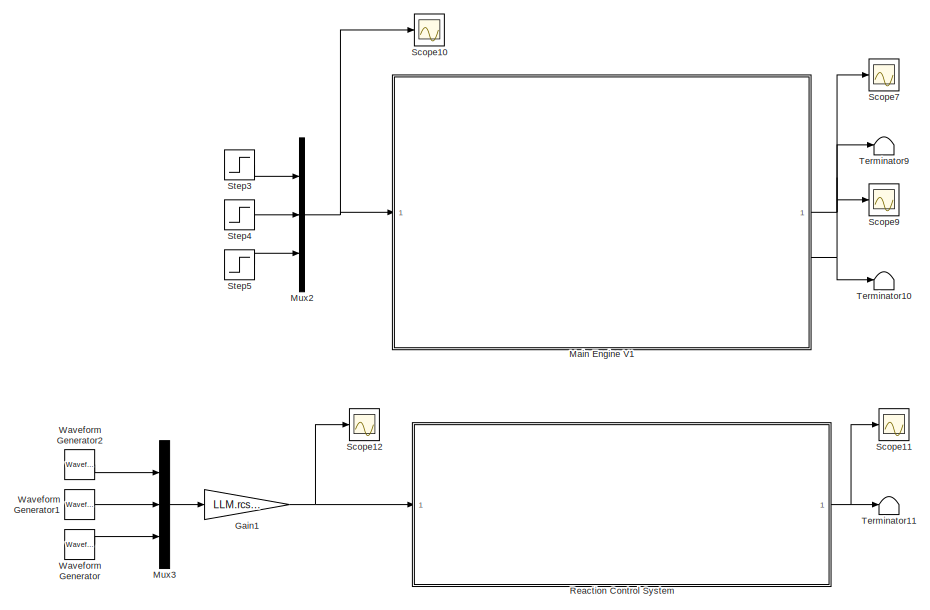
[diagram: root canvas - part 1/4, top right region]
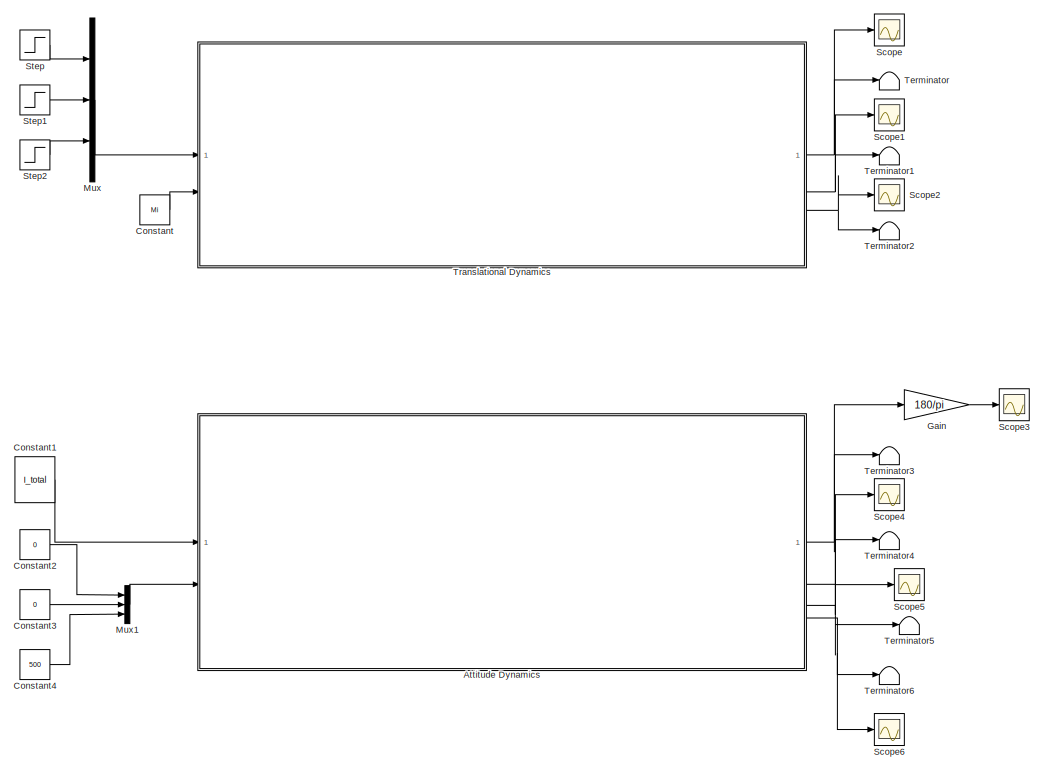
[diagram: root canvas - part 2/4, top left region]
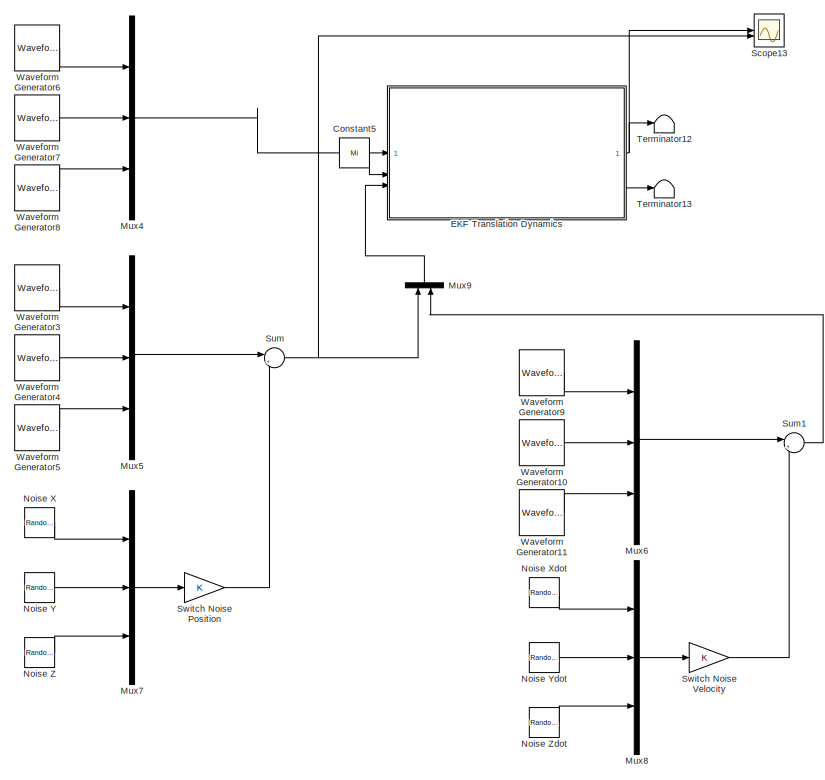
[diagram: root canvas - part 3/4, middle right region]
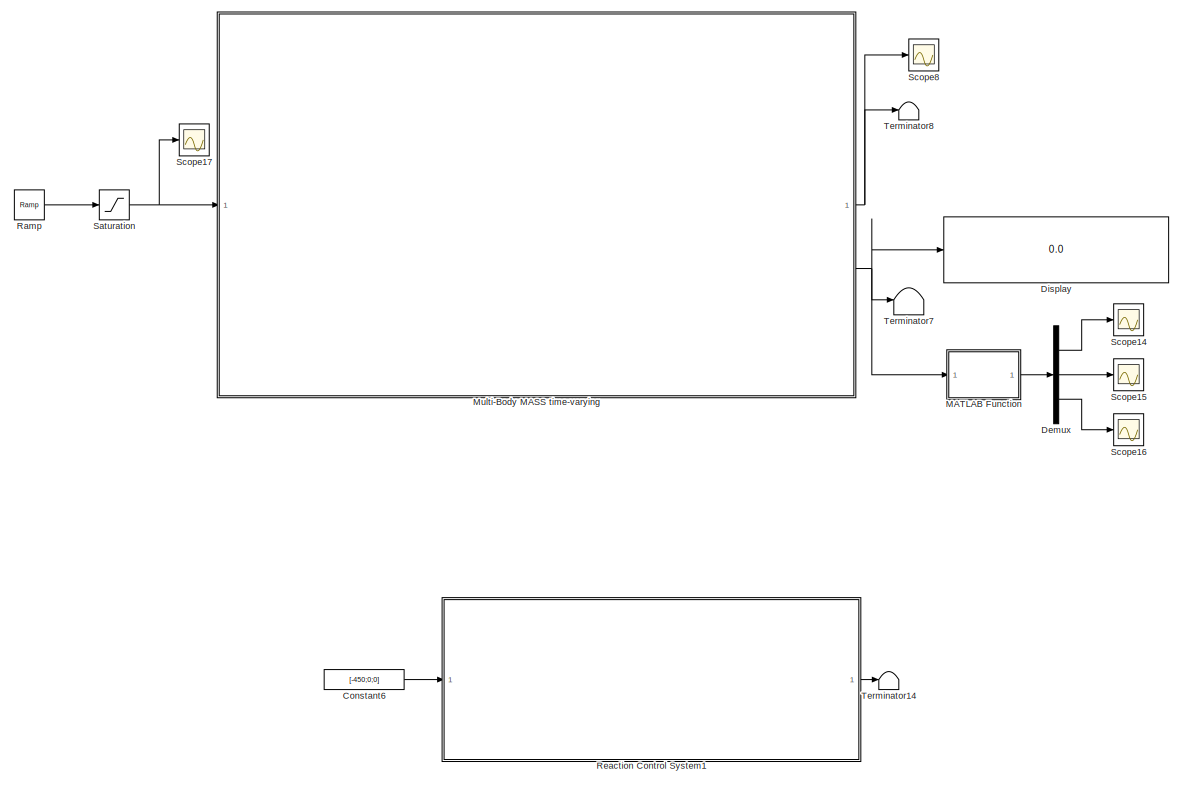
[diagram: root canvas - part 4/4, bottom left region]
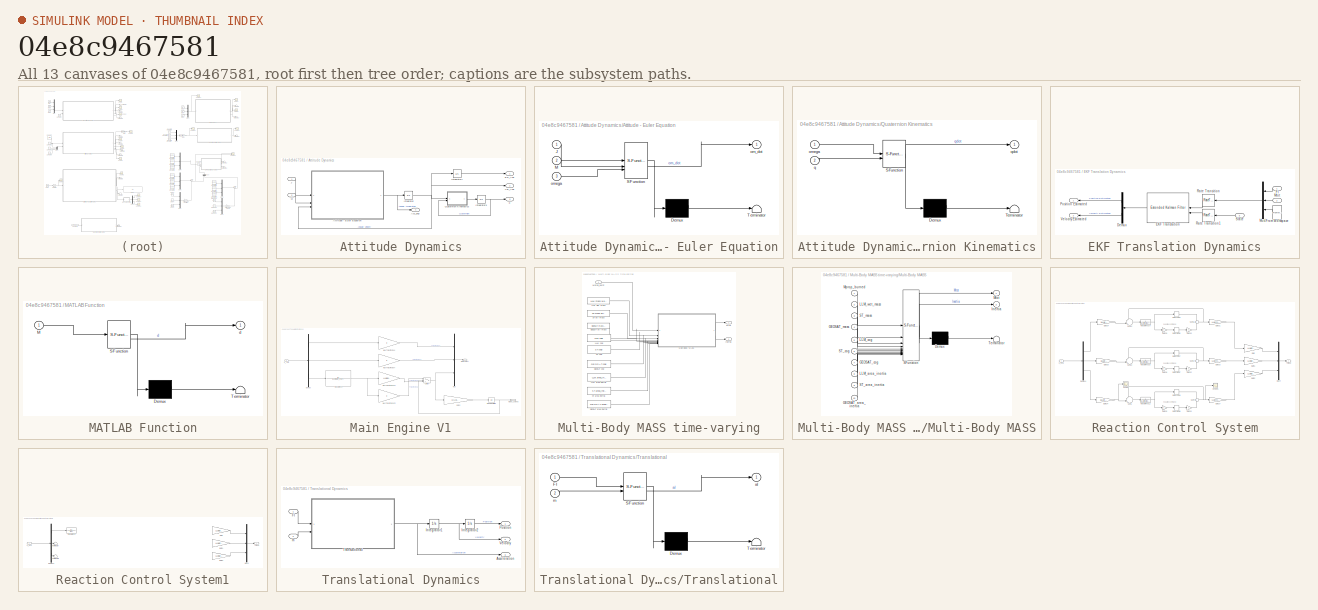
[diagram: thumbnail index - all 13 canvases of the model, root first then tree order]
MODEL slx_04e8c9467581
KIND model
CONFIG AbsTol = auto
CONFIG EnableMultiTasking = off
CONFIG FixedStep = 0.01
CONFIG MaxStep = auto
CONFIG MinStep = auto
CONFIG RelTol = 1e-3
CONFIG SampleTimeConstraint = Unconstrained
CONFIG SolverName = ode4
CONFIG StartTime = 0.0
CONFIG StopTime = 2000
BLOCK [RandomNumber]  Noise X
  Commented = on
  SampleTime = 1/f_plant
  Seed = 1
  Variance = sigma_pos^2
BLOCK [RandomNumber]  Noise Xdot
  Commented = on
  SampleTime = 1/f_plant
  Seed = 1
  Variance = sigma_vel^2
BLOCK [SubSystem] Attitude Dynamics
  Commented = on
  NameLocation = top
BLOCK [Outport] Attitude Dynamics/Acc_ang
  Port = 4
BLOCK [SubSystem] Attitude Dynamics/Attitude - Euler Equation
  ErrorFcn = Stateflow.Translate.translate
  PermitHierarchicalResolution = ExplicitOnly
  SFBlockType = MATLAB Function
  TreatAsAtomicUnit = on
BLOCK [Demux] Attitude Dynamics/Attitude - Euler Equation/ Demux 
  Outputs = 1
BLOCK [S-Function] Attitude Dynamics/Attitude - Euler Equation/ SFunction 
  EnableBusSupport = on
  FunctionName = sf_sfun
  PortCounts = [3 2]
  SFcnIsStateOwnerBlock = off
  SFunctionDeploymentMode = off
  Tag = Stateflow S-Function 1
BLOCK [Terminator] Attitude Dynamics/Attitude - Euler Equation/ Terminator 
BLOCK [Inport] Attitude Dynamics/Attitude - Euler Equation/J
BLOCK [Inport] Attitude Dynamics/Attitude - Euler Equation/M
  Port = 2
BLOCK [Outport] Attitude Dynamics/Attitude - Euler Equation/om_dot
BLOCK [Inport] Attitude Dynamics/Attitude - Euler Equation/omega
  Port = 3
BLOCK [Outport] Attitude Dynamics/Eul_Ang
BLOCK [Integrator] Attitude Dynamics/Integrator
  InitialCondition = [0;0;0]
BLOCK [Integrator] Attitude Dynamics/Integrator1
  InitialCondition = [0;0;0]
BLOCK [Integrator] Attitude Dynamics/Integrator3
  InitialCondition = [0;0;0;0]
BLOCK [Inport] Attitude Dynamics/J
BLOCK [Inport] Attitude Dynamics/M
  Port = 2
BLOCK [SubSystem] Attitude Dynamics/Quaternion Kinematics
  ErrorFcn = Stateflow.Translate.translate
  PermitHierarchicalResolution = ExplicitOnly
  SFBlockType = MATLAB Function
  TreatAsAtomicUnit = on
BLOCK [Demux] Attitude Dynamics/Quaternion Kinematics/ Demux 
  Outputs = 1
BLOCK [S-Function] Attitude Dynamics/Quaternion Kinematics/ SFunction 
  EnableBusSupport = on
  FunctionName = sf_sfun
  PortCounts = [2 2]
  SFcnIsStateOwnerBlock = off
  SFunctionDeploymentMode = off
  Tag = Stateflow S-Function 5
BLOCK [Terminator] Attitude Dynamics/Quaternion Kinematics/ Terminator 
BLOCK [Inport] Attitude Dynamics/Quaternion Kinematics/omega
BLOCK [Inport] Attitude Dynamics/Quaternion Kinematics/q
  Port = 2
BLOCK [Outport] Attitude Dynamics/Quaternion Kinematics/qdot
BLOCK [Outport] Attitude Dynamics/Vel_Ang
  Port = 2
BLOCK [Outport] Attitude Dynamics/q
  Port = 3
BLOCK [Constant] Constant
  Commented = on
  Value = Mi
BLOCK [Constant] Constant1
  Commented = on
  Value = I_total
BLOCK [Constant] Constant2
  Commented = on
  Value = 0
BLOCK [Constant] Constant3
  Commented = on
  Value = 0
BLOCK [Constant] Constant4
  Commented = on
  Value = 500
BLOCK [Constant] Constant5
  Commented = on
  Value = Mi
BLOCK [Constant] Constant6
  Value = [-450;0;0]
BLOCK [Demux] Demux
  Commented = on
  Outputs = 3
BLOCK [Display] Display
  Commented = on
  Decimation = 1
BLOCK [SubSystem] EKF Translation Dynamics
  Commented = on
BLOCK [Demux] EKF Translation Dynamics/Demux
  NameLocation = top
  Outputs = 2
BLOCK [Reference] EKF Translation Dynamics/EKF Translation  REF=sharedTrackingLibrary/Extended Kalman Filter
  LibrarySourceBlock = cstblocks/State Estimation/Extended Kalman Filter
  NameLocation = top
  SourceBlock = sharedTrackingLibrary/Extended Kalman Filter
  SourceType = Extended Kalman Filter
BLOCK [Inport] EKF Translation Dynamics/FI
  NameLocation = top
BLOCK [FromWorkspace] EKF Translation Dynamics/From Workspace
  NameLocation = top
  VariableName = f_plant
BLOCK [Inport] EKF Translation Dynamics/Mtot
  NameLocation = top
  Port = 2
BLOCK [Mux] EKF Translation Dynamics/Mux1
  DisplayOption = bar
  Inputs = 3
  NameLocation = top
BLOCK [Outport] EKF Translation Dynamics/Position Estimated
BLOCK [RateTransition] EKF Translation Dynamics/Rate Transition
  NameLocation = top
  OutPortSampleTime = 1/f_plant
BLOCK [RateTransition] EKF Translation Dynamics/Rate Transition1
  NameLocation = top
  OutPortSampleTime = 1/f_plant
BLOCK [Inport] EKF Translation Dynamics/State
  NameLocation = top
  Port = 3
BLOCK [Outport] EKF Translation Dynamics/Velocity Estimated
  Port = 2
BLOCK [Gain] Gain
  Commented = on
  Gain = 180/pi
BLOCK [Gain] Gain1
  Commented = on
  Gain = LLM.rcs.Fmax
BLOCK [SubSystem] MATLAB Function
  Commented = on
  ErrorFcn = Stateflow.Translate.translate
  PermitHierarchicalResolution = ExplicitOnly
  SFBlockType = MATLAB Function
  TreatAsAtomicUnit = on
BLOCK [Demux] MATLAB Function/ Demux 
  Outputs = 1
BLOCK [S-Function] MATLAB Function/ SFunction 
  EnableBusSupport = on
  FunctionName = sf_sfun
  PortCounts = [1 2]
  SFcnIsStateOwnerBlock = off
  SFunctionDeploymentMode = off
  Tag = Stateflow S-Function 3
BLOCK [Terminator] MATLAB Function/ Terminator 
BLOCK [Inport] MATLAB Function/M
BLOCK [Outport] MATLAB Function/d
BLOCK [SubSystem] Main Engine V1
  Commented = on
BLOCK [Demux] Main Engine V1/Demux
  Outputs = 3
BLOCK [Gain] Main Engine V1/Gain2
  Gain = 1/(LLM.propellant.isp*g0)
BLOCK [Integrator] Main Engine V1/Integrator Limited
  LimitOutput = on
  LowerSaturationLimit = 0
  UpperSaturationLimit = LLM.propellant.mass
BLOCK [Outport] Main Engine V1/Main Thrust 
BLOCK [Gain] Main Engine V1/Max Thrust Force X
  Gain = 0
BLOCK [Gain] Main Engine V1/Max Thrust Force Z1
  Gain = LLM.main_engine.Fmax
BLOCK [Gain] Main Engine V1/Max Thrust Force Z2
  Gain = 0
BLOCK [Gain] Main Engine V1/Max Thrust ForceY
  Gain = 0
BLOCK [Outport] Main Engine V1/Mprop_burned
  Port = 2
BLOCK [Mux] Main Engine V1/Mux
  DisplayOption = bar
  Inputs = 3
BLOCK [Switch] Main Engine V1/Switch
  Criteria = u2 > Threshold
  InputSameDT = off
  SaturateOnIntegerOverflow = off
  Threshold = 0.99*LLM.propellant.mass
BLOCK [TransferFcn] Main Engine V1/Transfer Fcn
  Denominator = [LLM.main_engine.tau 1]
BLOCK [Inport] Main Engine V1/u_THR
BLOCK [SubSystem] Multi-Body MASS time-varying
  Commented = on
BLOCK [Constant] Multi-Body MASS time-varying/GEOSAT area inertia
  Value = GEOSAT.area_inertia
BLOCK [Constant] Multi-Body MASS time-varying/GEOSAT cog
  Value = GEOSAT.cog
BLOCK [Constant] Multi-Body MASS time-varying/GEOSAT dry mass
  Value = GEOSAT.mass.dry
BLOCK [Outport] Multi-Body MASS time-varying/Inertia
  Port = 2
BLOCK [Constant] Multi-Body MASS time-varying/LLM area inertia
  Value = LLM.area_inertia
BLOCK [Constant] Multi-Body MASS time-varying/LLM cog
  Value = LLM.cog
BLOCK [Constant] Multi-Body MASS time-varying/LLM wet mass
  Value = LLM.mass.wet_descent
BLOCK [Inport] Multi-Body MASS time-varying/Mprop_burnt
  OutDataTypeStr = double
  SignalType = real
BLOCK [Outport] Multi-Body MASS time-varying/Mtot
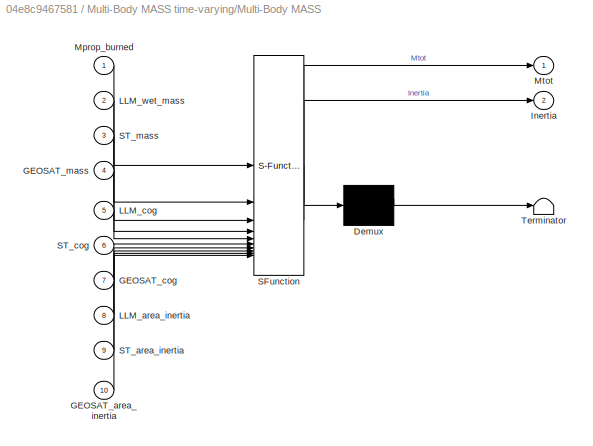
BLOCK [SubSystem] Multi-Body MASS time-varying/Multi-Body MASS
  ErrorFcn = Stateflow.Translate.translate
  PermitHierarchicalResolution = ExplicitOnly
  SFBlockType = MATLAB Function
  TreatAsAtomicUnit = on
BLOCK [Demux] Multi-Body MASS time-varying/Multi-Body MASS/ Demux 
  Outputs = 1
BLOCK [S-Function] Multi-Body MASS time-varying/Multi-Body MASS/ SFunction 
  EnableBusSupport = on
  FunctionName = sf_sfun
  PortCounts = [10 3]
  SFcnIsStateOwnerBlock = off
  SFunctionDeploymentMode = off
  Tag = Stateflow S-Function 4
BLOCK [Terminator] Multi-Body MASS time-varying/Multi-Body MASS/ Terminator 
BLOCK [Inport] Multi-Body MASS time-varying/Multi-Body MASS/GEOSAT_area_inertia
  Port = 10
BLOCK [Inport] Multi-Body MASS time-varying/Multi-Body MASS/GEOSAT_cog
  Port = 7
BLOCK [Inport] Multi-Body MASS time-varying/Multi-Body MASS/GEOSAT_mass
  Port = 4
BLOCK [Outport] Multi-Body MASS time-varying/Multi-Body MASS/Inertia
  Port = 2
BLOCK [Inport] Multi-Body MASS time-varying/Multi-Body MASS/LLM_area_inertia
  Port = 8
BLOCK [Inport] Multi-Body MASS time-varying/Multi-Body MASS/LLM_cog
  Port = 5
BLOCK [Inport] Multi-Body MASS time-varying/Multi-Body MASS/LLM_wet_mass
  Port = 2
BLOCK [Inport] Multi-Body MASS time-varying/Multi-Body MASS/Mprop_burned
BLOCK [Outport] Multi-Body MASS time-varying/Multi-Body MASS/Mtot
BLOCK [Inport] Multi-Body MASS time-varying/Multi-Body MASS/ST_area_inertia
  Port = 9
BLOCK [Inport] Multi-Body MASS time-varying/Multi-Body MASS/ST_cog
  Port = 6
BLOCK [Inport] Multi-Body MASS time-varying/Multi-Body MASS/ST_mass
  Port = 3
BLOCK [Constant] Multi-Body MASS time-varying/ST area inertia
  Value = ST.area_inertia
BLOCK [Constant] Multi-Body MASS time-varying/ST cog
  Value = ST.cog
BLOCK [Constant] Multi-Body MASS time-varying/ST dry mass
  Value = ST.mass.dry
BLOCK [Mux] Mux
  Commented = on
  DisplayOption = bar
  Inputs = 3
BLOCK [Mux] Mux1
  Commented = on
  DisplayOption = bar
  Inputs = 3
BLOCK [Mux] Mux2
  Commented = on
  DisplayOption = bar
  Inputs = 3
BLOCK [Mux] Mux3
  Commented = on
  DisplayOption = bar
  Inputs = 3
BLOCK [Mux] Mux4
  Commented = on
  DisplayOption = bar
  Inputs = 3
BLOCK [Mux] Mux5
  Commented = on
  DisplayOption = bar
  Inputs = 3
BLOCK [Mux] Mux6
  Commented = on
  DisplayOption = bar
  Inputs = 3
BLOCK [Mux] Mux7
  Commented = on
  DisplayOption = bar
  Inputs = 3
BLOCK [Mux] Mux8
  Commented = on
  DisplayOption = bar
  Inputs = 3
BLOCK [Mux] Mux9
  Commented = on
  DisplayOption = bar
  Inputs = 2
  NameLocation = right
BLOCK [RandomNumber] Noise Y
  Commented = on
  SampleTime = 1/f_plant
  Seed = 2
  Variance = sigma_pos^2
BLOCK [RandomNumber] Noise Ydot
  Commented = on
  SampleTime = 1/f_plant
  Seed = 2
  Variance = sigma_vel^2
BLOCK [RandomNumber] Noise Z
  Commented = on
  SampleTime = 1/f_plant
  Seed = 3
  Variance = sigma_pos^2
BLOCK [RandomNumber] Noise Zdot
  Commented = on
  SampleTime = 1/f_plant
  Seed = 3
  Variance = sigma_vel^2
BLOCK [Reference] Ramp  REF=simulink/Sources/Ramp
  Commented = on
  SourceBlock = simulink/Sources/Ramp
  SourceType = Ramp
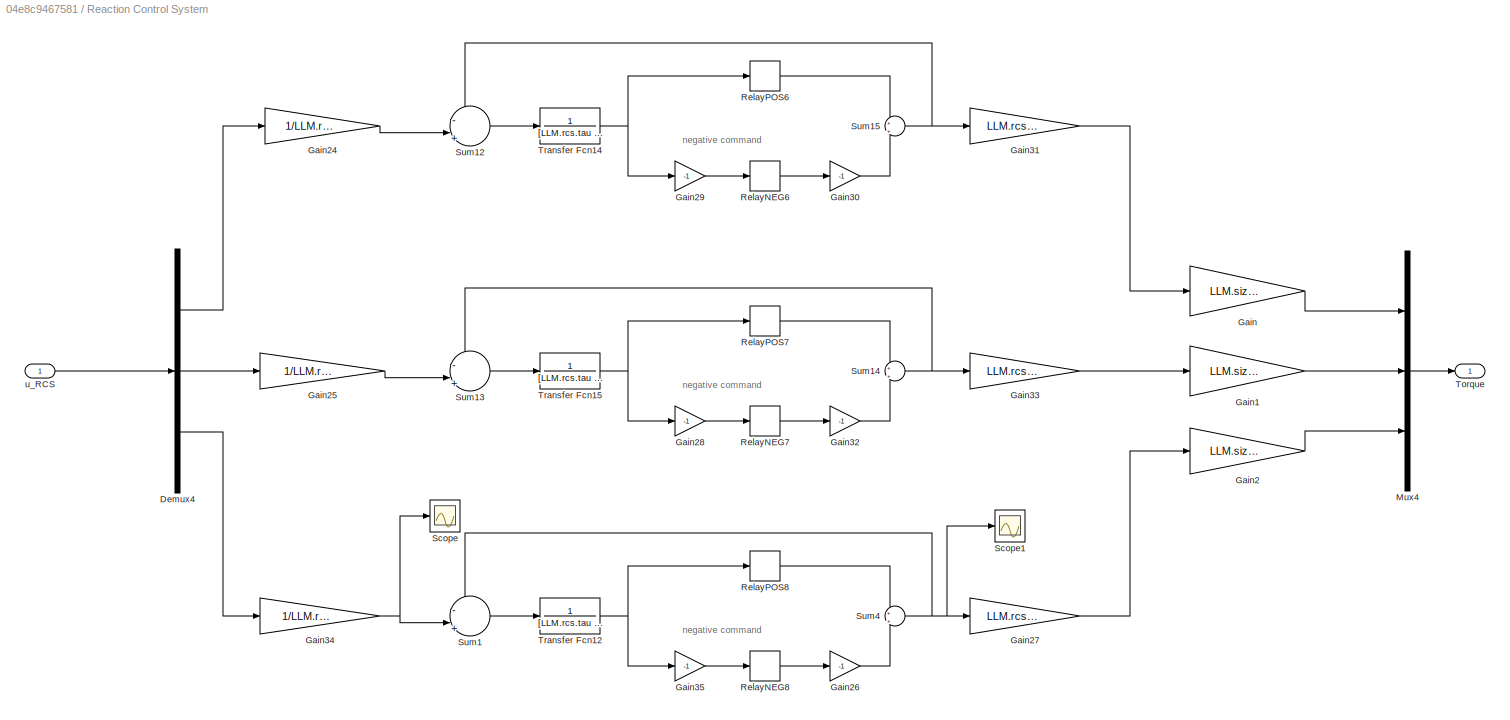
BLOCK [SubSystem] Reaction Control System
  Commented = on
  TreatAsAtomicUnit = on
BLOCK [Demux] Reaction Control System/Demux4
  Outputs = 3
BLOCK [Gain] Reaction Control System/Gain
  Gain = LLM.size.radius
BLOCK [Gain] Reaction Control System/Gain1
  Gain = LLM.size.radius
BLOCK [Gain] Reaction Control System/Gain2
  Gain = LLM.size.radius
BLOCK [Gain] Reaction Control System/Gain24
  Gain = 1/LLM.rcs.Fmax
BLOCK [Gain] Reaction Control System/Gain25
  Gain = 1/LLM.rcs.Fmax
BLOCK [Gain] Reaction Control System/Gain26
  Gain = -1
BLOCK [Gain] Reaction Control System/Gain27
  Gain = LLM.rcs.Fmax
BLOCK [Gain] Reaction Control System/Gain28
  Gain = -1
BLOCK [Gain] Reaction Control System/Gain29
  Gain = -1
BLOCK [Gain] Reaction Control System/Gain30
  Gain = -1
BLOCK [Gain] Reaction Control System/Gain31
  Gain = LLM.rcs.Fmax
BLOCK [Gain] Reaction Control System/Gain32
  Gain = -1
BLOCK [Gain] Reaction Control System/Gain33
  Gain = LLM.rcs.Fmax
BLOCK [Gain] Reaction Control System/Gain34
  Gain = 1/LLM.rcs.Fmax
BLOCK [Gain] Reaction Control System/Gain35
  Gain = -1
BLOCK [Mux] Reaction Control System/Mux4
  DisplayOption = bar
  Inputs = 3
BLOCK [Relay] Reaction Control System/RelayNEG6
  OffSwitchValue = Uoff
  OnSwitchValue = Uon
BLOCK [Relay] Reaction Control System/RelayNEG7
  OffSwitchValue = Uoff
  OnSwitchValue = Uon
BLOCK [Relay] Reaction Control System/RelayNEG8
  OffSwitchValue = Uoff
  OnSwitchValue = Uon
BLOCK [Relay] Reaction Control System/RelayPOS6
  OffSwitchValue = Uoff
  OnSwitchValue = Uon
BLOCK [Relay] Reaction Control System/RelayPOS7
  OffSwitchValue = Uoff
  OnSwitchValue = Uon
BLOCK [Relay] Reaction Control System/RelayPOS8
  OffSwitchValue = Uoff
  OnSwitchValue = Uon
BLOCK [Scope] Reaction Control System/Scope
  Floating = off
  NumInputPorts = 1
  ScopeSpecificationString = Simulink.scopes.TimeScopeBlockCfg('CurrentConfiguration', extmgr.ConfigurationSet(extmgr.Configuration('Core','General UI',true),extmgr.Configuration('Core','Source UI',true),extmgr.Configuration('Sources','WiredSimulink',true,'DataLoggingVariableName','ScopeData6'),extmgr.Configuration('Visuals','Time Domain',true,'SerializedDisplays',{struct('MinYLimReal','-1.25','MaxYLimReal','1.25','YLabelReal...<+1468ch>
BLOCK [Scope] Reaction Control System/Scope1
  Floating = off
  NumInputPorts = 1
  ScopeSpecificationString = Simulink.scopes.TimeScopeBlockCfg('CurrentConfiguration', extmgr.ConfigurationSet(extmgr.Configuration('Core','General UI',true),extmgr.Configuration('Core','Source UI',true),extmgr.Configuration('Sources','WiredSimulink',true,'DataLoggingVariableName','ScopeData7'),extmgr.Configuration('Visuals','Time Domain',true,'SerializedDisplays',{struct('MinYLimReal','-1.25','MaxYLimReal','1.25','YLabelReal...<+1467ch>
BLOCK [Sum] Reaction Control System/Sum1
  Inputs = -||+|||
BLOCK [Sum] Reaction Control System/Sum12
  Inputs = -||+|||
BLOCK [Sum] Reaction Control System/Sum13
  Inputs = -||+|||
BLOCK [Sum] Reaction Control System/Sum14
  Inputs = +|+
BLOCK [Sum] Reaction Control System/Sum15
  Inputs = +|+
BLOCK [Sum] Reaction Control System/Sum4
  Inputs = +|+
BLOCK [Outport] Reaction Control System/Torque
BLOCK [TransferFcn] Reaction Control System/Transfer Fcn12
  Denominator = [LLM.rcs.tau 1]
  Numerator = 1
BLOCK [TransferFcn] Reaction Control System/Transfer Fcn14
  Denominator = [LLM.rcs.tau 1]
  Numerator = 1
BLOCK [TransferFcn] Reaction Control System/Transfer Fcn15
  Denominator = [LLM.rcs.tau 1]
  Numerator = 1
BLOCK [Inport] Reaction Control System/u_RCS
BLOCK [SubSystem] Reaction Control System1
  TreatAsAtomicUnit = on
BLOCK [Demux] Reaction Control System1/Demux4
  Outputs = 3
BLOCK [Gain] Reaction Control System1/Gain
  Commented = on
  Gain = LLM.size.radius
BLOCK [Gain] Reaction Control System1/Gain1
  Commented = on
  Gain = LLM.size.radius
BLOCK [Gain] Reaction Control System1/Gain2
  Commented = on
  Gain = LLM.size.radius
BLOCK [Mux] Reaction Control System1/Mux4
  Commented = on
  DisplayOption = bar
  Inputs = 3
BLOCK [Terminator] Reaction Control System1/Terminator
BLOCK [Terminator] Reaction Control System1/Terminator1
BLOCK [Outport] Reaction Control System1/Torque
BLOCK [TransferFcn] Reaction Control System1/Transfer Fcn
  Denominator = [1 1]
BLOCK [Inport] Reaction Control System1/u_RCS
BLOCK [Saturate] Saturation
  Commented = on
  LowerLimit = 0
  UpperLimit = 0.01*LLM.propellant.mass
BLOCK [Scope] Scope
  Commented = on
  Floating = off
  NumInputPorts = 1
  ScopeSpecificationString = Simulink.scopes.TimeScopeBlockCfg('CurrentConfiguration', extmgr.ConfigurationSet(extmgr.Configuration('Core','General UI',true),extmgr.Configuration('Core','Source UI',true),extmgr.Configuration('Sources','WiredSimulink',true),extmgr.Configuration('Visuals','Time Domain',true,'SerializedDisplays',{struct('MinYLimReal','-422309.70635','MaxYLimReal','3800771.52818','YLabelReal','','MinYLimMag','   ...<+1668ch>
BLOCK [Scope] Scope1
  Commented = on
  Floating = off
  NumInputPorts = 1
  ScopeSpecificationString = Simulink.scopes.TimeScopeBlockCfg('CurrentConfiguration', extmgr.ConfigurationSet(extmgr.Configuration('Core','General UI',true),extmgr.Configuration('Core','Source UI',true),extmgr.Configuration('Sources','WiredSimulink',true,'DataLoggingVariableName','ScopeData1'),extmgr.Configuration('Visuals','Time Domain',true,'SerializedDisplays',{struct('MinYLimReal','-424.53988','MaxYLimReal','3804.69417',...<+1615ch>
BLOCK [Scope] Scope10
  Commented = on
  Floating = off
  NumInputPorts = 1
  ScopeSpecificationString = Simulink.scopes.TimeScopeBlockCfg('CurrentConfiguration', extmgr.ConfigurationSet(extmgr.Configuration('Core','General UI',true),extmgr.Configuration('Core','Source UI',true),extmgr.Configuration('Sources','WiredSimulink',true,'DataLoggingVariableName','ScopeData3'),extmgr.Configuration('Visuals','Time Domain',true,'SerializedDisplays',{struct('MinYLimReal','-0.125','MaxYLimReal','1.125','YLabelRe...<+1600ch>
BLOCK [Scope] Scope11
  Commented = on
  Floating = off
  NumInputPorts = 1
  ScopeSpecificationString = Simulink.scopes.TimeScopeBlockCfg('CurrentConfiguration', extmgr.ConfigurationSet(extmgr.Configuration('Core','General UI',true),extmgr.Configuration('Core','Source UI',true),extmgr.Configuration('Sources','WiredSimulink',true,'DataLoggingVariableName','ScopeData4'),extmgr.Configuration('Visuals','Time Domain',true,'SerializedDisplays',{struct('MinYLimReal','-413.68744','MaxYLimReal','2206.33299',...<+1663ch>
BLOCK [Scope] Scope12
  Commented = on
  Floating = off
  NumInputPorts = 1
  ScopeSpecificationString = Simulink.scopes.TimeScopeBlockCfg('CurrentConfiguration', extmgr.ConfigurationSet(extmgr.Configuration('Core','General UI',true),extmgr.Configuration('Core','Source UI',true),extmgr.Configuration('Sources','WiredSimulink',true,'DataLoggingVariableName','ScopeData5'),extmgr.Configuration('Visuals','Time Domain',true,'SerializedDisplays',{struct('MinYLimReal','-523.34468','MaxYLimReal','523.14644','...<+1714ch>
BLOCK [Scope] Scope13
  Commented = on
  Floating = off
  NumInputPorts = 2
  ScopeSpecificationString = Simulink.scopes.TimeScopeBlockCfg('CurrentConfiguration', extmgr.ConfigurationSet(extmgr.Configuration('Core','General UI',true),extmgr.Configuration('Core','Source UI',true),extmgr.Configuration('Sources','WiredSimulink',true,'DataLoggingVariableName','ScopeData1'),extmgr.Configuration('Visuals','Time Domain',true,'SerializedDisplays',{struct('MinYLimReal','-10.00000','MaxYLimReal','10.00000','YL...<+1454ch>
BLOCK [Scope] Scope14
  Commented = on
  Floating = off
  NumInputPorts = 1
  ScopeSpecificationString = Simulink.scopes.TimeScopeBlockCfg('CurrentConfiguration', extmgr.ConfigurationSet(extmgr.Configuration('Core','General UI',true),extmgr.Configuration('Core','Source UI',true),extmgr.Configuration('Sources','WiredSimulink',true,'DataLoggingVariableName','ScopeData2'),extmgr.Configuration('Visuals','Time Domain',true,'SerializedDisplays',{struct('MinYLimReal','84938.26523','MaxYLimReal','155737.8249...<+1562ch>
BLOCK [Scope] Scope15
  Commented = on
  Floating = off
  NumInputPorts = 1
  ScopeSpecificationString = Simulink.scopes.TimeScopeBlockCfg('CurrentConfiguration', extmgr.ConfigurationSet(extmgr.Configuration('Core','General UI',true),extmgr.Configuration('Core','Source UI',true),extmgr.Configuration('Sources','WiredSimulink',true,'DataLoggingVariableName','ScopeData3'),extmgr.Configuration('Visuals','Time Domain',true,'SerializedDisplays',{struct('MinYLimReal','87375.76523','MaxYLimReal','158175.3249...<+1562ch>
BLOCK [Scope] Scope16
  Commented = on
  Floating = off
  NumInputPorts = 1
  ScopeSpecificationString = Simulink.scopes.TimeScopeBlockCfg('CurrentConfiguration', extmgr.ConfigurationSet(extmgr.Configuration('Core','General UI',true),extmgr.Configuration('Core','Source UI',true),extmgr.Configuration('Sources','WiredSimulink',true,'DataLoggingVariableName','ScopeData4'),extmgr.Configuration('Visuals','Time Domain',true,'SerializedDisplays',{struct('MinYLimReal','67356.1964','MaxYLimReal','67843.0004',...<+1502ch>
BLOCK [Scope] Scope17
  Commented = on
  Floating = off
  NumInputPorts = 1
  ScopeSpecificationString = Simulink.scopes.TimeScopeBlockCfg('CurrentConfiguration', extmgr.ConfigurationSet(extmgr.Configuration('Core','General UI',true),extmgr.Configuration('Core','Source UI',true),extmgr.Configuration('Sources','WiredSimulink',true,'DataLoggingVariableName','ScopeData5'),extmgr.Configuration('Visuals','Time Domain',true,'SerializedDisplays',{struct('MinYLimReal','-6.08505','MaxYLimReal','54.76545','YLa...<+1462ch>
BLOCK [Scope] Scope2
  Commented = on
  Floating = off
  NumInputPorts = 1
  ScopeSpecificationString = Simulink.scopes.TimeScopeBlockCfg('CurrentConfiguration', extmgr.ConfigurationSet(extmgr.Configuration('Core','General UI',true),extmgr.Configuration('Core','Source UI',true),extmgr.Configuration('Sources','WiredSimulink',true,'DataLoggingVariableName','ScopeData2'),extmgr.Configuration('Visuals','Time Domain',true,'SerializedDisplays',{struct('MinYLimReal','-1.74415','MaxYLimReal','1.96761','YLab...<+1608ch>
BLOCK [Scope] Scope3
  Commented = on
  Floating = off
  NumInputPorts = 1
  ScopeSpecificationString = Simulink.scopes.TimeScopeBlockCfg('CurrentConfiguration', extmgr.ConfigurationSet(extmgr.Configuration('Core','General UI',true),extmgr.Configuration('Core','Source UI',true),extmgr.Configuration('Sources','WiredSimulink',true,'DataLoggingVariableName','ScopeData3'),extmgr.Configuration('Visuals','Time Domain',true,'SerializedDisplays',{struct('MinYLimReal','-83090.52739','MaxYLimReal','337336.683...<+1581ch>
BLOCK [Scope] Scope4
  Commented = on
  Floating = off
  NumInputPorts = 1
  ScopeSpecificationString = Simulink.scopes.TimeScopeBlockCfg('CurrentConfiguration', extmgr.ConfigurationSet(extmgr.Configuration('Core','General UI',true),extmgr.Configuration('Core','Source UI',true),extmgr.Configuration('Sources','WiredSimulink',true,'DataLoggingVariableName','ScopeData4'),extmgr.Configuration('Visuals','Time Domain',true,'SerializedDisplays',{struct('MinYLimReal','6.31298','MaxYLimReal','6.46882','YLabe...<+1639ch>
BLOCK [Scope] Scope5
  Commented = on
  Floating = off
  NumInputPorts = 1
  ScopeSpecificationString = Simulink.scopes.TimeScopeBlockCfg('CurrentConfiguration', extmgr.ConfigurationSet(extmgr.Configuration('Core','General UI',true),extmgr.Configuration('Core','Source UI',true),extmgr.Configuration('Sources','WiredSimulink',true,'DataLoggingVariableName','ScopeData5'),extmgr.Configuration('Visuals','Time Domain',true,'SerializedDisplays',{struct('MinYLimReal','-0.000068','MaxYLimReal','0.000015','YL...<+1721ch>
BLOCK [Scope] Scope6
  Commented = on
  Floating = off
  NumInputPorts = 1
  ScopeSpecificationString = Simulink.scopes.TimeScopeBlockCfg('CurrentConfiguration', extmgr.ConfigurationSet(extmgr.Configuration('Core','General UI',true),extmgr.Configuration('Core','Source UI',true),extmgr.Configuration('Sources','WiredSimulink',true,'DataLoggingVariableName','ScopeData6'),extmgr.Configuration('Visuals','Time Domain',true,'SerializedDisplays',{struct('MinYLimReal','0.00731','MaxYLimReal','0.00872','YLabe...<+1645ch>
BLOCK [Scope] Scope7
  Commented = on
  Floating = off
  NumInputPorts = 1
  ScopeSpecificationString = Simulink.scopes.TimeScopeBlockCfg('CurrentConfiguration', extmgr.ConfigurationSet(extmgr.Configuration('Core','General UI',true),extmgr.Configuration('Core','Source UI',true),extmgr.Configuration('Sources','WiredSimulink',true,'DataLoggingVariableName','ScopeData1'),extmgr.Configuration('Visuals','Time Domain',true,'SerializedDisplays',{struct('MinYLimReal','-2500.00000','MaxYLimReal','22500.00000...<+1675ch>
BLOCK [Scope] Scope8
  Commented = on
  Floating = off
  NumInputPorts = 1
  ScopeSpecificationString = Simulink.scopes.TimeScopeBlockCfg('CurrentConfiguration', extmgr.ConfigurationSet(extmgr.Configuration('Core','General UI',true),extmgr.Configuration('Core','Source UI',true),extmgr.Configuration('Sources','WiredSimulink',true,'DataLoggingVariableName','ScopeData8'),extmgr.Configuration('Visuals','Time Domain',true,'SerializedDisplays',{struct('MinYLimReal','12013.27455','MaxYLimReal','12074.12505...<+1536ch>
BLOCK [Scope] Scope9
  Commented = on
  Floating = off
  NumInputPorts = 1
  ScopeSpecificationString = Simulink.scopes.TimeScopeBlockCfg('CurrentConfiguration', extmgr.ConfigurationSet(extmgr.Configuration('Core','General UI',true),extmgr.Configuration('Core','Source UI',true),extmgr.Configuration('Sources','WiredSimulink',true,'DataLoggingVariableName','ScopeData2'),extmgr.Configuration('Visuals','Time Domain',true,'SerializedDisplays',{struct('MinYLimReal','-602.42194','MaxYLimReal','5421.79749',...<+1555ch>
BLOCK [Step] Step
  After = 0
  Commented = on
  SampleTime = 0
BLOCK [Step] Step1
  After = 0
  Commented = on
  SampleTime = 0
BLOCK [Step] Step2
  After = LLM.main_engine.Fmax
  Commented = on
  SampleTime = 0
BLOCK [Step] Step3
  After = 0.4
  Commented = on
  SampleTime = 0
  Time = 30
BLOCK [Step] Step4
  After = 0.4
  Commented = on
  SampleTime = 0
  Time = 30
BLOCK [Step] Step5
  After = 0.5
  Commented = on
  SampleTime = 0
  Time = 30
BLOCK [Sum] Sum
  Commented = on
  Inputs = |++
BLOCK [Sum] Sum1
  Commented = on
  Inputs = |++
BLOCK [Gain] Switch Noise Position
  Commented = on
BLOCK [Gain] Switch Noise Velocity
  Commented = on
BLOCK [Terminator] Terminator
  Commented = on
BLOCK [Terminator] Terminator1
  Commented = on
BLOCK [Terminator] Terminator10
  Commented = on
BLOCK [Terminator] Terminator11
  Commented = on
BLOCK [Terminator] Terminator12
  Commented = on
BLOCK [Terminator] Terminator13
  Commented = on
BLOCK [Terminator] Terminator14
BLOCK [Terminator] Terminator2
  Commented = on
BLOCK [Terminator] Terminator3
  Commented = on
BLOCK [Terminator] Terminator4
  Commented = on
BLOCK [Terminator] Terminator5
  Commented = on
BLOCK [Terminator] Terminator6
  Commented = on
BLOCK [Terminator] Terminator7
  Commented = on
BLOCK [Terminator] Terminator8
  Commented = on
BLOCK [Terminator] Terminator9
  Commented = on
BLOCK [SubSystem] Translational Dynamics
  Commented = on
  NameLocation = top
BLOCK [Outport] Translational Dynamics/Acceleration
  Port = 3
BLOCK [Inport] Translational Dynamics/FI
BLOCK [Integrator] Translational Dynamics/Integrator1
BLOCK [Integrator] Translational Dynamics/Integrator2
BLOCK [Outport] Translational Dynamics/Position
BLOCK [SubSystem] Translational Dynamics/Translational
  ErrorFcn = Stateflow.Translate.translate
  PermitHierarchicalResolution = ExplicitOnly
  SFBlockType = MATLAB Function
  TreatAsAtomicUnit = on
BLOCK [Demux] Translational Dynamics/Translational/ Demux 
  Outputs = 1
BLOCK [S-Function] Translational Dynamics/Translational/ SFunction 
  EnableBusSupport = on
  FunctionName = sf_sfun
  PortCounts = [2 2]
  SFcnIsStateOwnerBlock = off
  SFunctionDeploymentMode = off
  Tag = Stateflow S-Function 2
BLOCK [Terminator] Translational Dynamics/Translational/ Terminator 
BLOCK [Inport] Translational Dynamics/Translational/FI
BLOCK [Outport] Translational Dynamics/Translational/aI
BLOCK [Inport] Translational Dynamics/Translational/m
  Port = 2
BLOCK [Outport] Translational Dynamics/Velocity
  Port = 2
BLOCK [Inport] Translational Dynamics/m
  Port = 2
BLOCK [Reference] Waveform Generator  REF=simulink/Sources/Waveform
Generator
  Commented = on
  SourceBlock = simulink/Sources/Waveform\nGenerator
  SourceType = WaveformGenerator
BLOCK [Reference] Waveform Generator1  REF=simulink/Sources/Waveform
Generator
  Commented = on
  SourceBlock = simulink/Sources/Waveform\nGenerator
  SourceType = WaveformGenerator
BLOCK [Reference] Waveform Generator10  REF=simulink/Sources/Waveform
Generator
  Commented = on
  SourceBlock = simulink/Sources/Waveform\nGenerator
  SourceType = WaveformGenerator
BLOCK [Reference] Waveform Generator11  REF=simulink/Sources/Waveform
Generator
  Commented = on
  SourceBlock = simulink/Sources/Waveform\nGenerator
  SourceType = WaveformGenerator
BLOCK [Reference] Waveform Generator2  REF=simulink/Sources/Waveform
Generator
  Commented = on
  SourceBlock = simulink/Sources/Waveform\nGenerator
  SourceType = WaveformGenerator
BLOCK [Reference] Waveform Generator3  REF=simulink/Sources/Waveform
Generator
  Commented = on
  SourceBlock = simulink/Sources/Waveform\nGenerator
  SourceType = WaveformGenerator
BLOCK [Reference] Waveform Generator4  REF=simulink/Sources/Waveform
Generator
  Commented = on
  SourceBlock = simulink/Sources/Waveform\nGenerator
  SourceType = WaveformGenerator
BLOCK [Reference] Waveform Generator5  REF=simulink/Sources/Waveform
Generator
  Commented = on
  SourceBlock = simulink/Sources/Waveform\nGenerator
  SourceType = WaveformGenerator
BLOCK [Reference] Waveform Generator6  REF=simulink/Sources/Waveform
Generator
  Commented = on
  SourceBlock = simulink/Sources/Waveform\nGenerator
  SourceType = WaveformGenerator
BLOCK [Reference] Waveform Generator7  REF=simulink/Sources/Waveform
Generator
  Commented = on
  SourceBlock = simulink/Sources/Waveform\nGenerator
  SourceType = WaveformGenerator
BLOCK [Reference] Waveform Generator8  REF=simulink/Sources/Waveform
Generator
  Commented = on
  SourceBlock = simulink/Sources/Waveform\nGenerator
  SourceType = WaveformGenerator
BLOCK [Reference] Waveform Generator9  REF=simulink/Sources/Waveform
Generator
  Commented = on
  SourceBlock = simulink/Sources/Waveform\nGenerator
  SourceType = WaveformGenerator
ANNOTATION Reaction Control System: negative command
LINE  Noise X:1 -> Mux7:1
LINE  Noise Xdot:1 -> Mux8:1
NET Attitude Dynamics/Attitude - Euler Equation:1 -> Attitude Dynamics/Acc_ang:1, Attitude Dynamics/Integrator:1
LINE Attitude Dynamics/Integrator1:1 -> Attitude Dynamics/Eul_Ang:1
NET Attitude Dynamics/Integrator3:1 -> Attitude Dynamics/Quaternion Kinematics:2, Attitude Dynamics/q:1
NET Attitude Dynamics/Integrator:1 -> Attitude Dynamics/Attitude - Euler Equation:3, Attitude Dynamics/Integrator1:1, Attitude Dynamics/Quaternion Kinematics:1, Attitude Dynamics/Vel_Ang:1
LINE Attitude Dynamics/J:1 -> Attitude Dynamics/Attitude - Euler Equation:1
LINE Attitude Dynamics/M:1 -> Attitude Dynamics/Attitude - Euler Equation:2
LINE Attitude Dynamics/Quaternion Kinematics:1 -> Attitude Dynamics/Integrator3:1
NET Attitude Dynamics:1 -> Gain:1, Terminator3:1
NET Attitude Dynamics:2 -> Scope4:1, Terminator4:1
NET Attitude Dynamics:3 -> Scope5:1, Terminator5:1
NET Attitude Dynamics:4 -> Scope6:1, Terminator6:1
LINE Constant1:1 -> Attitude Dynamics:1
LINE Constant2:1 -> Mux1:1
LINE Constant3:1 -> Mux1:2
LINE Constant4:1 -> Mux1:3
LINE Constant5:1 -> EKF Translation Dynamics:2
LINE Constant6:1 -> Reaction Control System1:1
LINE Constant:1 -> Translational Dynamics:2
LINE Demux:1 -> Scope14:1
LINE Demux:2 -> Scope15:1
LINE Demux:3 -> Scope16:1
LINE EKF Translation Dynamics/Demux:1 -> EKF Translation Dynamics/Position Estimated:1
LINE EKF Translation Dynamics/Demux:2 -> EKF Translation Dynamics/Velocity Estimated:1
LINE EKF Translation Dynamics/EKF Translation:1 -> EKF Translation Dynamics/Demux:1
LINE EKF Translation Dynamics/FI:1 -> EKF Translation Dynamics/Mux1:1
LINE EKF Translation Dynamics/From Workspace:1 -> EKF Translation Dynamics/Mux1:3
LINE EKF Translation Dynamics/Mtot:1 -> EKF Translation Dynamics/Mux1:2
LINE EKF Translation Dynamics/Mux1:1 -> EKF Translation Dynamics/Rate Transition:1
LINE EKF Translation Dynamics/Rate Transition1:1 -> EKF Translation Dynamics/EKF Translation:2
LINE EKF Translation Dynamics/Rate Transition:1 -> EKF Translation Dynamics/EKF Translation:1
LINE EKF Translation Dynamics/State:1 -> EKF Translation Dynamics/Rate Transition1:1
NET EKF Translation Dynamics:1 -> Scope13:1, Terminator12:1
LINE EKF Translation Dynamics:2 -> Terminator13:1
NET Gain1:1 -> Reaction Control System:1, Scope12:1
LINE Gain:1 -> Scope3:1
LINE MATLAB Function:1 -> Demux:1
LINE Main Engine V1/Demux:1 -> Main Engine V1/Max Thrust Force X:1
LINE Main Engine V1/Demux:2 -> Main Engine V1/Max Thrust ForceY:1
LINE Main Engine V1/Demux:3 -> Main Engine V1/Transfer Fcn:1
LINE Main Engine V1/Gain2:1 -> Main Engine V1/Integrator Limited:1
NET Main Engine V1/Integrator Limited:1 -> Main Engine V1/Mprop_burned:1, Main Engine V1/Switch:2
LINE Main Engine V1/Max Thrust Force X:1 -> Main Engine V1/Mux:1
LINE Main Engine V1/Max Thrust Force Z1:1 -> Main Engine V1/Switch:3
LINE Main Engine V1/Max Thrust Force Z2:1 -> Main Engine V1/Switch:1
LINE Main Engine V1/Max Thrust ForceY:1 -> Main Engine V1/Mux:2
LINE Main Engine V1/Mux:1 -> Main Engine V1/Main Thrust :1
NET Main Engine V1/Switch:1 -> Main Engine V1/Gain2:1, Main Engine V1/Mux:3
NET Main Engine V1/Transfer Fcn:1 -> Main Engine V1/Max Thrust Force Z1:1, Main Engine V1/Max Thrust Force Z2:1
LINE Main Engine V1/u_THR:1 -> Main Engine V1/Demux:1
NET Main Engine V1:1 -> Scope7:1, Terminator9:1
NET Main Engine V1:2 -> Scope9:1, Terminator10:1
LINE Multi-Body MASS time-varying/GEOSAT area inertia:1 -> Multi-Body MASS time-varying/Multi-Body MASS:10
LINE Multi-Body MASS time-varying/GEOSAT cog:1 -> Multi-Body MASS time-varying/Multi-Body MASS:7
LINE Multi-Body MASS time-varying/GEOSAT dry mass:1 -> Multi-Body MASS time-varying/Multi-Body MASS:4
LINE Multi-Body MASS time-varying/LLM area inertia:1 -> Multi-Body MASS time-varying/Multi-Body MASS:8
LINE Multi-Body MASS time-varying/LLM cog:1 -> Multi-Body MASS time-varying/Multi-Body MASS:5
LINE Multi-Body MASS time-varying/LLM wet mass:1 -> Multi-Body MASS time-varying/Multi-Body MASS:2
LINE Multi-Body MASS time-varying/Mprop_burnt:1 -> Multi-Body MASS time-varying/Multi-Body MASS:1
LINE Multi-Body MASS time-varying/Multi-Body MASS:1 -> Multi-Body MASS time-varying/Mtot:1
LINE Multi-Body MASS time-varying/Multi-Body MASS:2 -> Multi-Body MASS time-varying/Inertia:1
LINE Multi-Body MASS time-varying/ST area inertia:1 -> Multi-Body MASS time-varying/Multi-Body MASS:9
LINE Multi-Body MASS time-varying/ST cog:1 -> Multi-Body MASS time-varying/Multi-Body MASS:6
LINE Multi-Body MASS time-varying/ST dry mass:1 -> Multi-Body MASS time-varying/Multi-Body MASS:3
NET Multi-Body MASS time-varying:1 -> Scope8:1, Terminator8:1
NET Multi-Body MASS time-varying:2 -> Display:1, MATLAB Function:1, Terminator7:1
LINE Mux1:1 -> Attitude Dynamics:2
NET Mux2:1 -> Main Engine V1:1, Scope10:1
LINE Mux3:1 -> Gain1:1
LINE Mux4:1 -> EKF Translation Dynamics:1
LINE Mux5:1 -> Sum:1
LINE Mux6:1 -> Sum1:1
LINE Mux7:1 -> Switch Noise Position:1
LINE Mux8:1 -> Switch Noise Velocity:1
LINE Mux9:1 -> EKF Translation Dynamics:3
LINE Mux:1 -> Translational Dynamics:1
LINE Noise Y:1 -> Mux7:2
LINE Noise Ydot:1 -> Mux8:2
LINE Noise Z:1 -> Mux7:3
LINE Noise Zdot:1 -> Mux8:3
LINE Ramp:1 -> Saturation:1
LINE Reaction Control System/Demux4:1 -> Reaction Control System/Gain24:1
LINE Reaction Control System/Demux4:2 -> Reaction Control System/Gain25:1
LINE Reaction Control System/Demux4:3 -> Reaction Control System/Gain34:1
LINE Reaction Control System/Gain1:1 -> Reaction Control System/Mux4:2
LINE Reaction Control System/Gain24:1 -> Reaction Control System/Sum12:2
LINE Reaction Control System/Gain25:1 -> Reaction Control System/Sum13:2
LINE Reaction Control System/Gain26:1 -> Reaction Control System/Sum4:2
LINE Reaction Control System/Gain27:1 -> Reaction Control System/Gain2:1
LINE Reaction Control System/Gain28:1 -> Reaction Control System/RelayNEG7:1
LINE Reaction Control System/Gain29:1 -> Reaction Control System/RelayNEG6:1
LINE Reaction Control System/Gain2:1 -> Reaction Control System/Mux4:3
LINE Reaction Control System/Gain30:1 -> Reaction Control System/Sum15:2
LINE Reaction Control System/Gain31:1 -> Reaction Control System/Gain:1
LINE Reaction Control System/Gain32:1 -> Reaction Control System/Sum14:2
LINE Reaction Control System/Gain33:1 -> Reaction Control System/Gain1:1
NET Reaction Control System/Gain34:1 -> Reaction Control System/Scope:1, Reaction Control System/Sum1:2
LINE Reaction Control System/Gain35:1 -> Reaction Control System/RelayNEG8:1
LINE Reaction Control System/Gain:1 -> Reaction Control System/Mux4:1
LINE Reaction Control System/Mux4:1 -> Reaction Control System/Torque:1
LINE Reaction Control System/RelayNEG6:1 -> Reaction Control System/Gain30:1
LINE Reaction Control System/RelayNEG7:1 -> Reaction Control System/Gain32:1
LINE Reaction Control System/RelayNEG8:1 -> Reaction Control System/Gain26:1
LINE Reaction Control System/RelayPOS6:1 -> Reaction Control System/Sum15:1
LINE Reaction Control System/RelayPOS7:1 -> Reaction Control System/Sum14:1
LINE Reaction Control System/RelayPOS8:1 -> Reaction Control System/Sum4:1
LINE Reaction Control System/Sum12:1 -> Reaction Control System/Transfer Fcn14:1
LINE Reaction Control System/Sum13:1 -> Reaction Control System/Transfer Fcn15:1
NET Reaction Control System/Sum14:1 -> Reaction Control System/Gain33:1, Reaction Control System/Sum13:1
NET Reaction Control System/Sum15:1 -> Reaction Control System/Gain31:1, Reaction Control System/Sum12:1
LINE Reaction Control System/Sum1:1 -> Reaction Control System/Transfer Fcn12:1
NET Reaction Control System/Sum4:1 -> Reaction Control System/Gain27:1, Reaction Control System/Scope1:1, Reaction Control System/Sum1:1
NET Reaction Control System/Transfer Fcn12:1 -> Reaction Control System/Gain35:1, Reaction Control System/RelayPOS8:1
NET Reaction Control System/Transfer Fcn14:1 -> Reaction Control System/Gain29:1, Reaction Control System/RelayPOS6:1
NET Reaction Control System/Transfer Fcn15:1 -> Reaction Control System/Gain28:1, Reaction Control System/RelayPOS7:1
LINE Reaction Control System/u_RCS:1 -> Reaction Control System/Demux4:1
LINE Reaction Control System1/Demux4:1 -> Reaction Control System1/Transfer Fcn:1
LINE Reaction Control System1/Demux4:2 -> Reaction Control System1/Terminator:1
LINE Reaction Control System1/Demux4:3 -> Reaction Control System1/Terminator1:1
LINE Reaction Control System1/Gain1:1 -> Reaction Control System1/Mux4:2
LINE Reaction Control System1/Gain2:1 -> Reaction Control System1/Mux4:3
LINE Reaction Control System1/Gain:1 -> Reaction Control System1/Mux4:1
LINE Reaction Control System1/Mux4:1 -> Reaction Control System1/Torque:1
LINE Reaction Control System1/u_RCS:1 -> Reaction Control System1/Demux4:1
LINE Reaction Control System1:1 -> Terminator14:1
NET Reaction Control System:1 -> Scope11:1, Terminator11:1
NET Saturation:1 -> Multi-Body MASS time-varying:1, Scope17:1
LINE Step1:1 -> Mux:2
LINE Step2:1 -> Mux:3
LINE Step3:1 -> Mux2:1
LINE Step4:1 -> Mux2:2
LINE Step5:1 -> Mux2:3
LINE Step:1 -> Mux:1
LINE Sum1:1 -> Mux9:2
NET Sum:1 -> Mux9:1, Scope13:2
LINE Switch Noise Position:1 -> Sum:2
LINE Switch Noise Velocity:1 -> Sum1:2
LINE Translational Dynamics/FI:1 -> Translational Dynamics/Translational:1
NET Translational Dynamics/Integrator1:1 -> Translational Dynamics/Integrator2:1, Translational Dynamics/Velocity:1
LINE Translational Dynamics/Integrator2:1 -> Translational Dynamics/Position:1
NET Translational Dynamics/Translational:1 -> Translational Dynamics/Acceleration:1, Translational Dynamics/Integrator1:1
LINE Translational Dynamics/m:1 -> Translational Dynamics/Translational:2
NET Translational Dynamics:1 -> Scope:1, Terminator:1
NET Translational Dynamics:2 -> Scope1:1, Terminator1:1
NET Translational Dynamics:3 -> Scope2:1, Terminator2:1
LINE Waveform Generator10:1 -> Mux6:2
LINE Waveform Generator11:1 -> Mux6:3
LINE Waveform Generator1:1 -> Mux3:2
LINE Waveform Generator2:1 -> Mux3:1
LINE Waveform Generator3:1 -> Mux5:1
LINE Waveform Generator4:1 -> Mux5:2
LINE Waveform Generator5:1 -> Mux5:3
LINE Waveform Generator6:1 -> Mux4:1
LINE Waveform Generator7:1 -> Mux4:2
LINE Waveform Generator8:1 -> Mux4:3
LINE Waveform Generator9:1 -> Mux6:1
LINE Waveform Generator:1 -> Mux3:3
note: NET lines group one-source signal fan-out (src -> all destinations, sorted); 1:1 wires keep LINE
CHART Attitude Dynamics/Attitude - Euler Equation states=1 transitions=1
  STATE_LABEL 'eML_blk_kernel()'
  STATE_LABEL 'SCRIPT:\nfunction om_dot = Rot_3D(J, M, omega)\nom_dot = inv(J)*(M-cross(omega,(J*omega)));'
CHART Translational Dynamics/Translational states=1 transitions=1
  STATE_LABEL 'eML_blk_kernel()'
  STATE_LABEL 'SCRIPT:\nfunction aI = Acc_3D(FI, m)\n% --- INPUT ---\n% FI    : 3x1 force in inertial frame [N]\n% m     : mass [kg]\n\n% --- OUTPUT ---\n% aI    : acceleration in inertial frame [m/s^2]\n\n% lunar gravity in inertial frame (verso -Z)\ngL = 1.622;\ngI = [0; 0; -gL];\n\n%  Acceleration\naI = FI./m + gI;\nend\n\n\n\n\n% Matrice di rotazione body -> inerziale (ZYX: Rz * Ry * Rx)\n% roll = eul_ang(1);\n% pitch = eul_ang(2...<+454ch>'
CHART MATLAB Function states=1 transitions=1
  STATE_LABEL 'eML_blk_kernel()'
  STATE_LABEL 'SCRIPT:\nfunction d = diag_extract(M)\n%#codegen\nd = diag(M);\n'
CHART Multi-Body MASS time-varying/Multi-Body MASS states=1 transitions=1
  STATE_LABEL 'eML_blk_kernel()'
  STATE_LABEL 'SCRIPT:\nfunction [Mtot, Inertia] = fcn(Mprop_burned, LLM_wet_mass, ST_mass, GEOSAT_mass, LLM_cog, ST_cog, GEOSAT_cog, LLM_area_inertia, ST_area_inertia, GEOSAT_area_inertia)\n% --- INPUT ---\n% Mprop_burned : total propellant burned so far\n% LLM_wet_mass : total LLM mass (dry = full propellant)\n% ST_mass : Space Tug mass (dry)\n% GEOSAT_mass : GEOSAT mass (dry)\n% LLM_cog : LLM center of gravity 3x1\n%...<+1532ch>'
CHART Attitude Dynamics/Quaternion Kinematics states=1 transitions=1
  STATE_LABEL 'eML_blk_kernel()'
  STATE_LABEL "SCRIPT:\nfunction qdot = fcn(omega,q)\n\nOmega = [0 -omega(1) -omega(2) -omega(3);\n         omega(1) 0 omega(3) omega(2);\n         omega(2) omega(3) 0 omega(1);\n         omega(3) omega(2) omega(1) 0];\n\nq0 = q(1);\nq1 = q(2);\nq2 = q(3);\nq3 = q(4);\n\nqdot = 0.5*Omega*[q0 q1 q2 q3]';\n"
CHART  states=0 transitions=0
CHART  states=0 transitions=0
CHART  states=0 transitions=0
CHART  states=0 transitions=0
CHART  states=0 transitions=0
